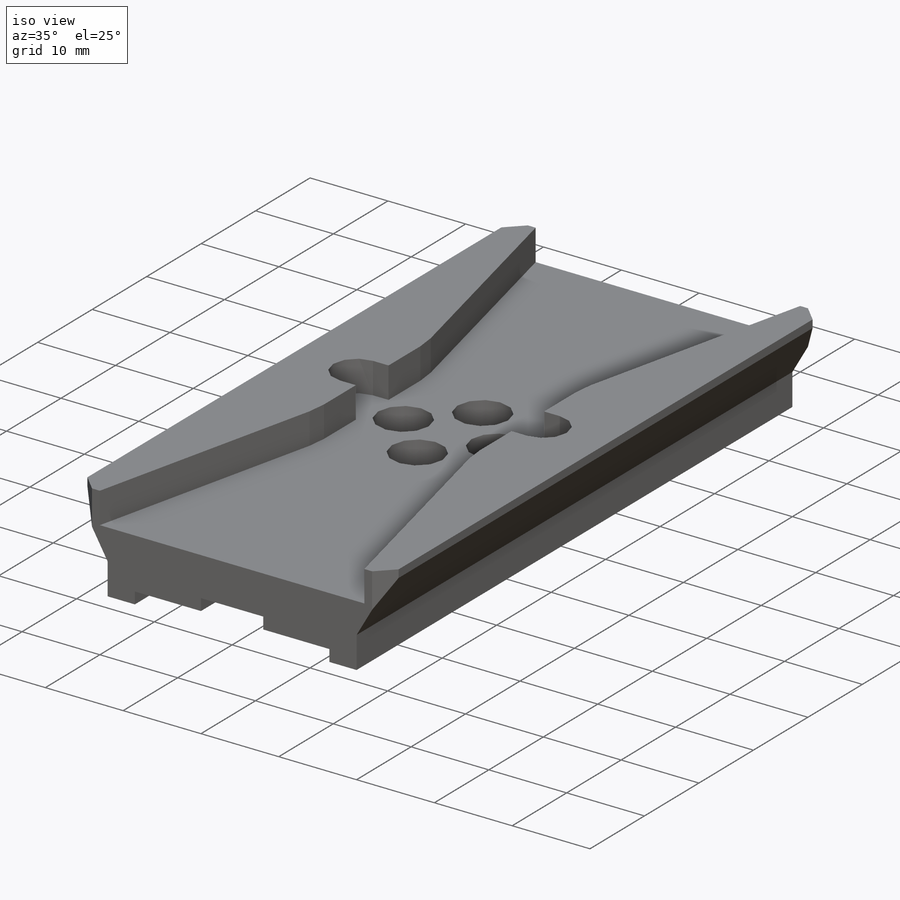
[diagram: iso view]
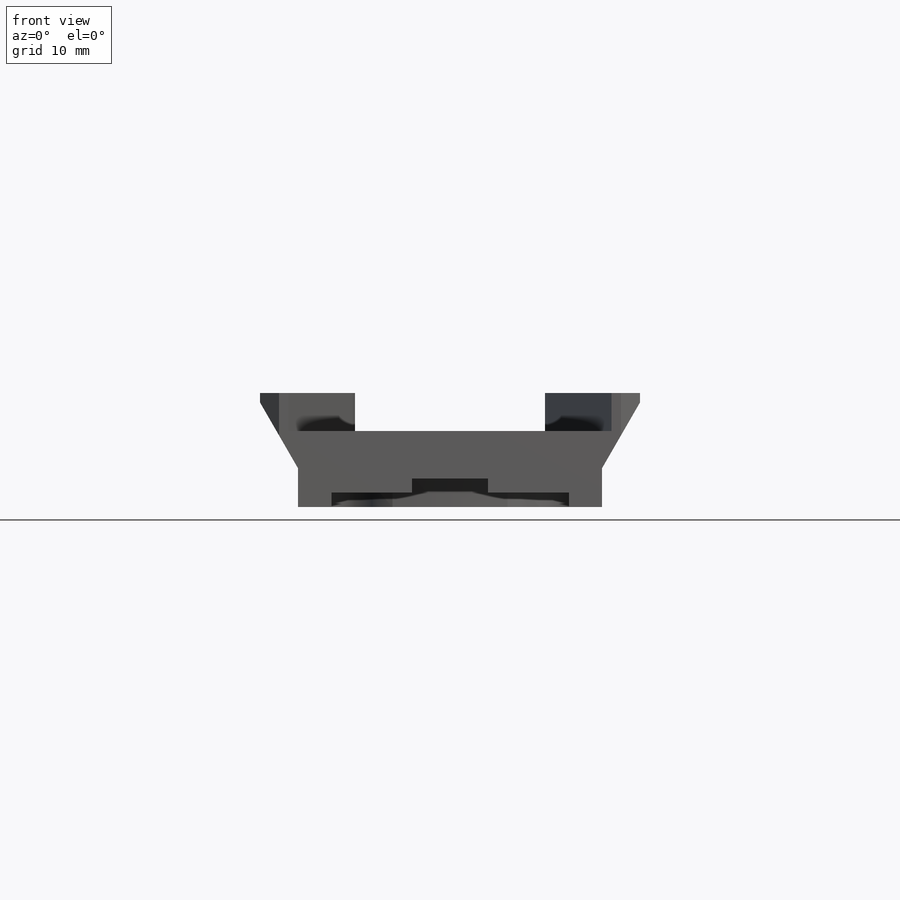
[diagram: front view]
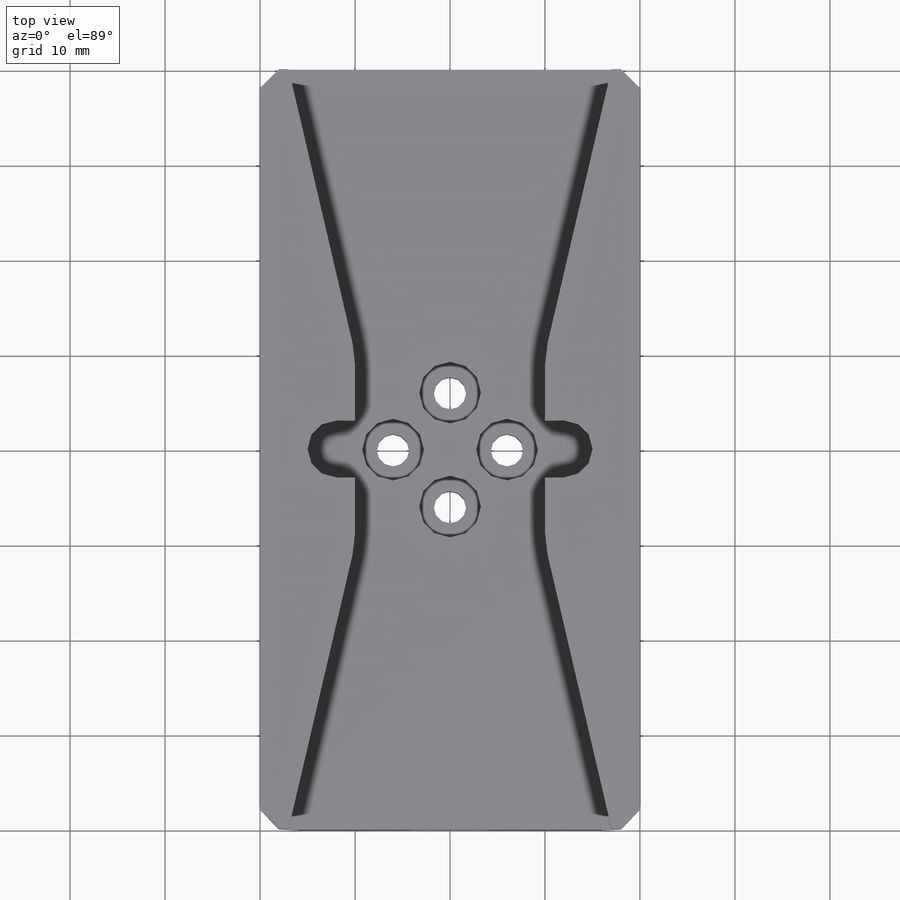
[diagram: top view]
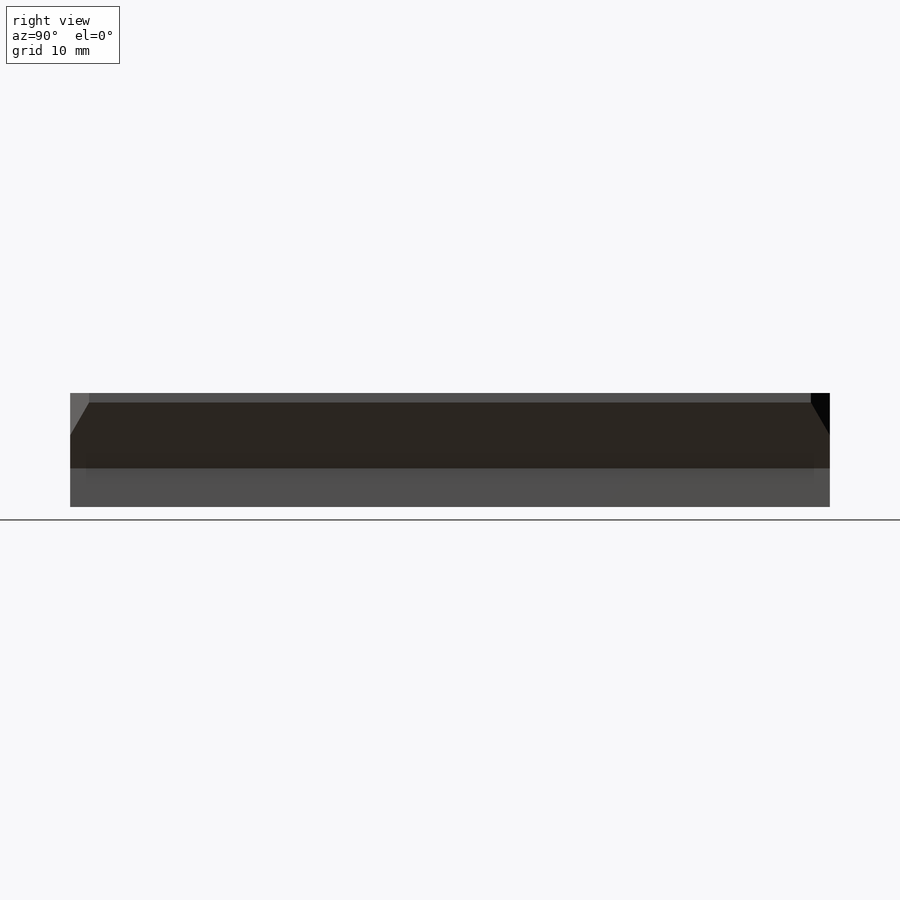
[diagram: right view]
SOLIDWORKS PART (.sldprt)
format: sldprt  version: not decoded by parser v0  size: 822,272 bytes
history: native  units: mm
features: sketch x19, cut_extrude x8, fillet x6, thread x6, plane x4, extrude x3, hole x3, material x1, mirror x1, chamfer x1 (+8 scaffold rows collapsed)
feature tree (60):
  scaffold x8  (default folders/planes/origin — collapsed)
  material  "Сплав 2024"
  plane  "Спереди"
  plane  "Сверху"
  plane  "Справа"
  sketch  "Эскиз1"  dims[c1.D1=~21.533092mm c1.D2=~101.657162mm c2.D1=20.0mm c2.D2=12.0mm c2.D3=~3.855448mm c3.D3=60.0deg c3.D4=6.0mm c3.D5=3.0mm c3.D6=30.0mm c3.D7=~0.941973mm c4.D6=20.0mm c4.D7=1.0mm c4.D8=10.0mm c4.D4=2.0mm c4.D1=16.0mm c5.D4=~20.57735mm]
  extrude  "Бобышка-Вытянуть1"  Depth=80mm
  sketch  "Эскиз2"  dims[c1.D1=15.0mm c1.D2=20.0mm c1.D3=5.0mm c2.D3=25.0deg c2.D4=~15.61947mm c3.D4=25.0deg c3.D5=5.0mm c3.D6=5.0mm c3.D7=~11.322781mm c3.D2=~11.021007mm c4.D2=25.0deg c4.D3=20.0mm c4.D1=10.0mm c5.D2=3.0mm c5.D4=34.0mm]
  cut_extrude  "Вырез-Вытянуть1"  Depth=4mm
  sketch  "Эскиз3"  dims[c1.D1=~5.270148mm c1.D2=~5.902215mm c2.D1=6.0mm c2.D2=5.0mm c2.D3=~27.817918mm]
  cut_extrude  "Вырез-Вытянуть2"  Depth=4mm
  fillet  "Скругление1"  Radius=1.5mm
  fillet  "Скругление2"  Radius=10mm
  sketch  "Эскиз4"  dims[D1=80.0mm]
  hole  "Цековка для винта с внутренним шестигранником M31"  [1 undecoded]
  sketch  "Эскиз6"
  sketch  "Эскиз5"  dims[hole-wizard template sketch: 42 standard entries collapsed; hole parameters kept: c12.Глубина сквозного отверстия=8.0mm c12.Диаметр цековки=6.5mm c12.Глубина цековки=3.0mm]
  sketch  "Эскиз7"  dims[c1.D2=~15.91383mm c1.D5=~28.750767mm c1.D1=~9.060272mm c2.D2=~7.400171mm c2.D1=~11.17763mm c3.D2=~11.861974mm c3.D1=3.0mm c4.D2=26.0mm c4.D3=23.0mm c5.D2=26.0mm c5.D4=26.0mm c5.D5=45.0mm]
  cut_extrude  "Вырез-Вытянуть3"  Depth=7mm
  sketch  "Эскиз8"  dims[c1.D1=~5.697567mm c1.D2=4.5mm c2.D1=7.1mm c2.D3=10.2mm c2.D4=~2.234801mm c2.D5=~8.562763mm c3.D4=3.0mm c3.D3=10.2mm]
  extrude  "Бобышка-Вытянуть2"  Depth=3mm
  hole  "Отверстие обработанное метчиком M2.5x0.451"  [1 undecoded]
  sketch  "Эскиз10"
  sketch  "Эскиз9"  dims[hole-wizard template sketch: 47 standard entries collapsed; hole parameters kept: c15.Глубина сверла=3.0mm c15.D3=~14.816244mm c15.Угол заточки сверла=118.0deg]
  thread  "Отверстие резьбы7"  Diameter=3mm  [1 undecoded]
  thread  "Отверстие резьбы8"  Diameter=3mm  [1 undecoded]
  sketch  "Эскиз12"  dims[c1.D1=3.0mm c1.D3=4.0mm c2.D1=1.0mm c2.D2=1.0mm c3.D1=23.0mm]
  sketch  "Эскиз15"  dims[c1.D1=5.0mm c1.D2=5.0mm c1.D3=5.0mm c2.D1=1.0mm c2.D2=1.0mm c2.D3=1.0mm c2.D4=1.0mm c3.D2=~27.985615mm c3.D3=23.0mm]
  extrude  "Бобышка-Вытянуть5"  [1 undecoded]
  fillet  "Скругление8"  Radius=3mm
  sketch  "Эскиз16"  dims[c1.D3=7.0mm c1.D4=7.0mm c1.D1=7.0mm c1.D5=7.0mm c1.D6=1.0mm c1.D7=1.0mm c1.D8=~16.755258mm c1.D2=1.0mm c2.D1=1.0mm c2.D2=1.0mm]
  cut_extrude  "Вырез-Вытянуть6"  Depth=1.5mm
  fillet  "Скругление9"  Radius=3mm
  hole  "Отверстие обработанное метчиком M3x0.52"  [1 undecoded]
  sketch  "Эскиз19"
  sketch  "Эскиз18"  dims[hole-wizard template sketch: 47 standard entries collapsed; hole parameters kept: c15.Глубина сверла=5.499mm c15.D3=~14.816244mm c15.Угол заточки сверла=118.0deg]
  thread  "Отверстие резьбы9"  Diameter=5.5mm  [1 undecoded]
  thread  "Отверстие резьбы10"  Diameter=5.5mm  [1 undecoded]
  thread  "Отверстие резьбы11"  Diameter=5.5mm  [1 undecoded]
  thread  "Отверстие резьбы12"  Diameter=5.5mm  [1 undecoded]
  sketch  "Эскиз20"  dims[c1.D1=~1.299929mm c1.D2=~4.920947mm c2.D1=8.0mm]
  cut_extrude  "Вырез-Вытянуть7"  Depth=1.5mm
  sketch  "Эскиз21"  dims[c1.D1=~5.130316mm c1.D2=~10.483694mm c2.D1=11.0mm c2.D2=5.0mm]
  cut_extrude  "Вырез-Вытянуть8"  [1 undecoded]
  plane  "Плоскость1"
  mirror  "Зеркальное отражение1"
  fillet  "Скругление10"  Radius=3mm
  sketch  "Эскиз23"  dims[c1.D1=~5.488954mm c2.D1=30.0deg c2.D2=40.0mm c3.D1=5.0mm c3.D2=5.0mm c4.D2=~38.659808deg c4.D1=~5.772928mm c5.D1=45.0deg]
  cut_extrude  "Вырез-Вытянуть10"  [1 undecoded]
  fillet  "Скругление14"  Radius=1.5mm
  chamfer  "Фаска1"  Distance=2mm Angle=45deg
  sketch  "Эскиз24"  dims[D1=~6.183085mm D2=2.0mm D3=80.0mm]
  cut_extrude  "Вырез-Вытянуть11"  [1 undecoded]
decode coverage: 36 of 47 modeling features carry decoded parameters
note: ~ marks probable driven/reference dimensions
note: 13 parameter values undecoded
summary: no parameter record found for 7 features
note: suppression state not decoded; provenance and decode notes live in map.json
